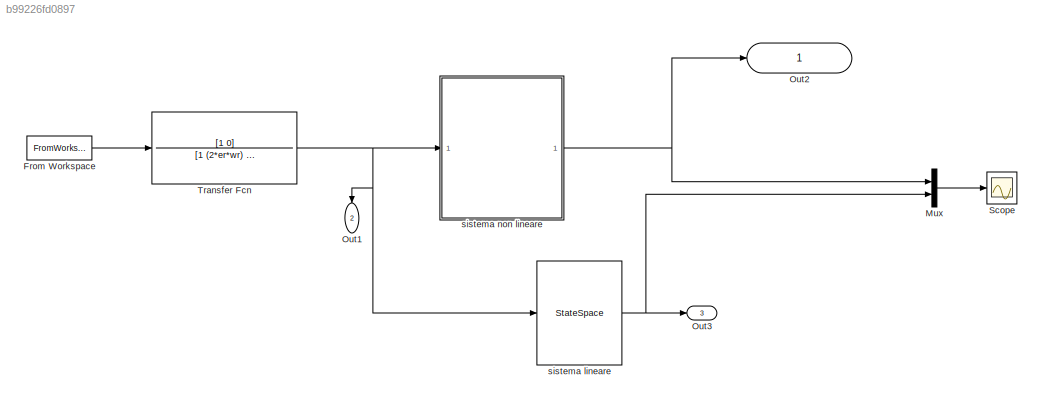
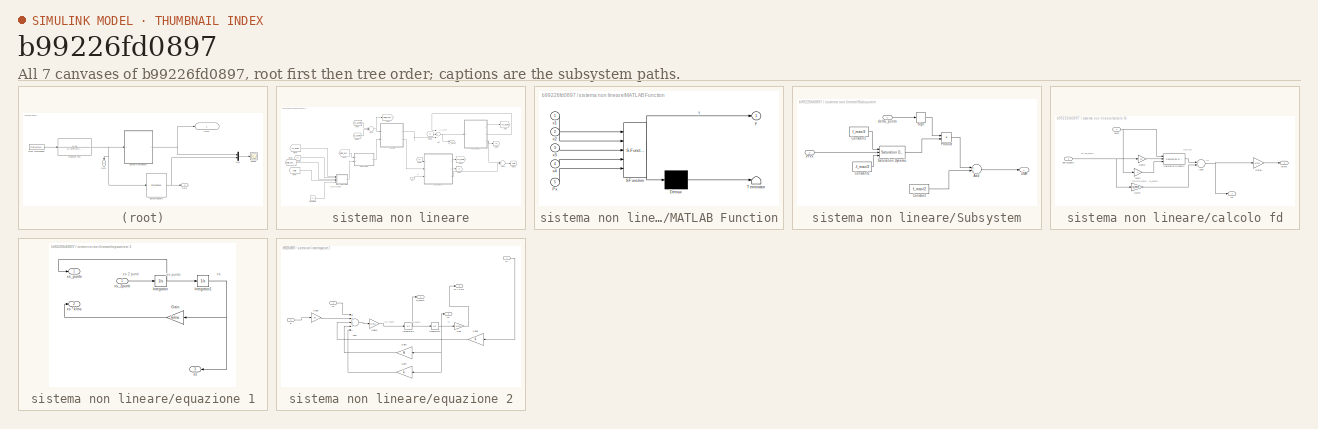
[diagram: thumbnail index - all 7 canvases of the model, root first then tree order]
MODEL slx_b99226fd0897
KIND model
CONFIG AbsTol = auto
CONFIG EnableMultiTasking = off
CONFIG FixedStep = dt
CONFIG MaxStep = auto
CONFIG MinStep = auto
CONFIG RelTol = 1e-3
CONFIG SampleTimeConstraint = Unconstrained
CONFIG Solver = FixedStepAuto
CONFIG SolverName = FixedStepAuto
CONFIG StartTime = 0.0
CONFIG StopTime = t_tot
BLOCK [FromWorkspace] From Workspace
  SampleTime = 0
  VariableName = N
  ZeroCross = on
BLOCK [Mux] Mux
  DisplayOption = bar
  Inputs = 2
  Ports = [2, 1]
BLOCK [Outport] Out1
  IconDisplay = Port number
  Port = 2
  SignalName = zr
BLOCK [Outport] Out2
  IconDisplay = Signal name
  SignalName = xs_2punti
BLOCK [Outport] Out3
  IconDisplay = Port number
  Port = 3
  SignalName = xs_2punti_lineare
BLOCK [Scope] Scope
  Floating = off
  NumInputPorts = 1
  Ports = [1]
  ScopeSpecificationString = Simulink.scopes.TimeScopeBlockCfg('CurrentConfiguration', extmgr.ConfigurationSet(extmgr.Configuration('Core','General UI',true),extmgr.Configuration('Core','Source UI',true),extmgr.Configuration('Sources','WiredSimulink',true),extmgr.Configuration('Visuals','Time Domain',true,'SerializedDisplays',{struct('MinYLimReal','-29.90981','MaxYLimReal','18.91763','YLabelReal','','MinYLimMag','0.00000','Ma...<+1440ch>
BLOCK [TransferFcn] Transfer Fcn
  Denominator = [1 (2*er*wr) wr^2]
  Numerator = [1 0]
BLOCK [StateSpace] sistema lineare
  A = A
  B = B
  C = C
  D = 0
  InitialCondition = 0
  Ports = [1, 1]
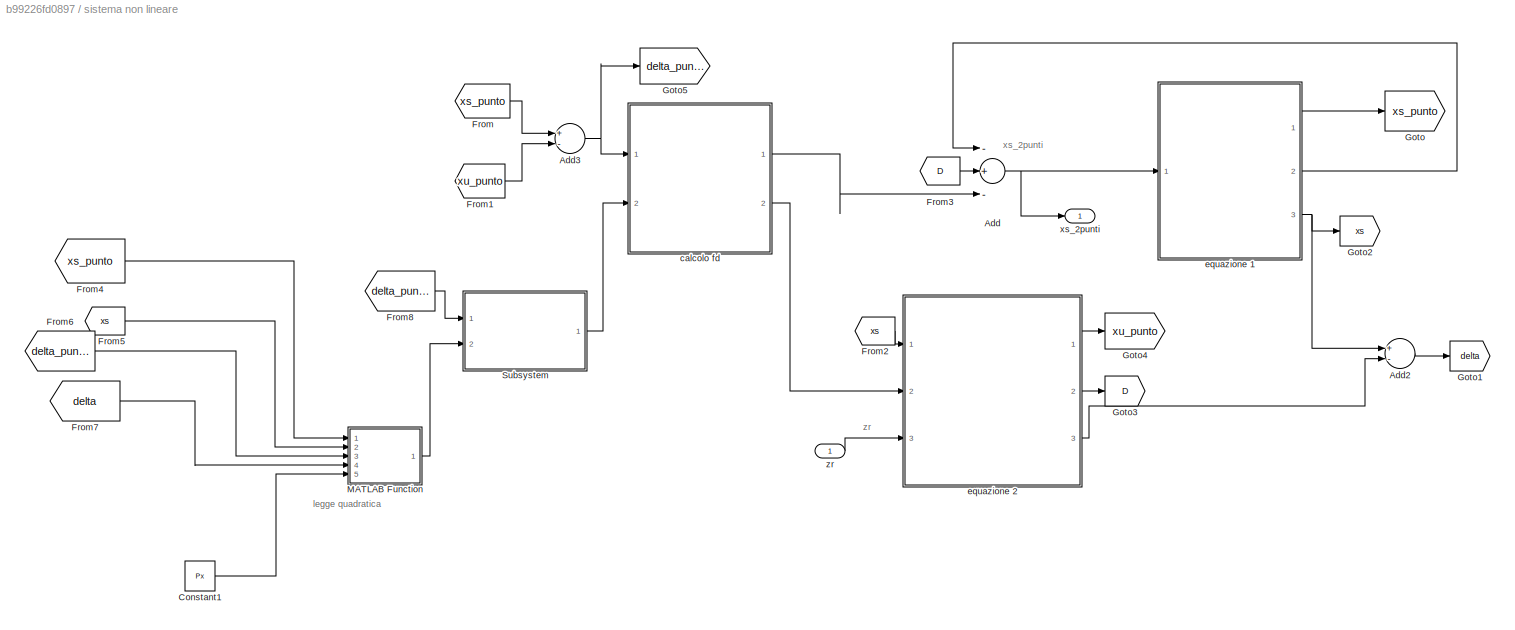
BLOCK [SubSystem] sistema non lineare
  Ports = [1, 1]
  RequestExecContextInheritance = off
BLOCK [Sum] sistema non lineare/Add
  InputSameDT = off
  Inputs = -+-
  OutDataTypeStr = Inherit: Inherit via internal rule
  Ports = [3, 1]
  SaturateOnIntegerOverflow = off
BLOCK [Sum] sistema non lineare/Add2
  InputSameDT = off
  Inputs = +-
  OutDataTypeStr = Inherit: Inherit via internal rule
  Ports = [2, 1]
  SaturateOnIntegerOverflow = off
BLOCK [Sum] sistema non lineare/Add3
  InputSameDT = off
  Inputs = +-
  OutDataTypeStr = Inherit: Inherit via internal rule
  Ports = [2, 1]
  SaturateOnIntegerOverflow = off
BLOCK [Constant] sistema non lineare/Constant1
  Value = Px
BLOCK [From] sistema non lineare/From
  GotoTag = xs_punto
BLOCK [From] sistema non lineare/From1
  GotoTag = xu_punto
BLOCK [From] sistema non lineare/From2
  GotoTag = xs
BLOCK [From] sistema non lineare/From3
  GotoTag = D
BLOCK [From] sistema non lineare/From4
  GotoTag = xs_punto
BLOCK [From] sistema non lineare/From5
  GotoTag = xs
BLOCK [From] sistema non lineare/From6
  GotoTag = delta_punto
BLOCK [From] sistema non lineare/From7
  GotoTag = delta
BLOCK [From] sistema non lineare/From8
  GotoTag = delta_punto
BLOCK [Goto] sistema non lineare/Goto
  GotoTag = xs_punto
BLOCK [Goto] sistema non lineare/Goto1
  GotoTag = delta
BLOCK [Goto] sistema non lineare/Goto2
  GotoTag = xs
BLOCK [Goto] sistema non lineare/Goto3
  GotoTag = D
BLOCK [Goto] sistema non lineare/Goto4
  GotoTag = xu_punto
BLOCK [Goto] sistema non lineare/Goto5
  GotoTag = delta_punto
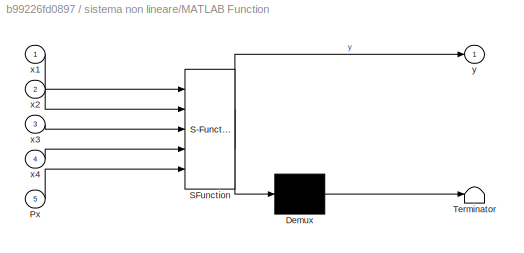
BLOCK [SubSystem] sistema non lineare/MATLAB Function
  ErrorFcn = Stateflow.Translate.translate
  PermitHierarchicalResolution = ExplicitOnly
  Ports = [5, 1]
  RequestExecContextInheritance = off
  SFBlockType = MATLAB Function
  TreatAsAtomicUnit = on
BLOCK [Demux] sistema non lineare/MATLAB Function/ Demux 
  Outputs = 1
  Ports = [1, 1]
BLOCK [S-Function] sistema non lineare/MATLAB Function/ SFunction 
  EnableBusSupport = on
  FunctionName = sf_sfun
  PortCounts = [5 2]
  Ports = [5, 2]
  SFcnIsStateOwnerBlock = off
  SFunctionDeploymentMode = off
  Tag = Stateflow S-Function 2
BLOCK [Terminator] sistema non lineare/MATLAB Function/ Terminator 
BLOCK [Inport] sistema non lineare/MATLAB Function/Px
  IconDisplay = Port number
  Port = 5
BLOCK [Inport] sistema non lineare/MATLAB Function/x1
  IconDisplay = Port number
BLOCK [Inport] sistema non lineare/MATLAB Function/x2
  IconDisplay = Port number
  Port = 2
BLOCK [Inport] sistema non lineare/MATLAB Function/x3
  IconDisplay = Port number
  Port = 3
BLOCK [Inport] sistema non lineare/MATLAB Function/x4
  IconDisplay = Port number
  Port = 4
BLOCK [Outport] sistema non lineare/MATLAB Function/y
  IconDisplay = Port number
BLOCK [SubSystem] sistema non lineare/Subsystem
  Ports = [2, 1]
  RequestExecContextInheritance = off
BLOCK [Sum] sistema non lineare/Subsystem/Add
  InputSameDT = off
  OutDataTypeStr = Inherit: Inherit via internal rule
  Ports = [2, 1]
  SaturateOnIntegerOverflow = off
BLOCK [Constant] sistema non lineare/Subsystem/Constant
  Value = f_max/2
BLOCK [Constant] sistema non lineare/Subsystem/Constant1
  Value = f_max/2
BLOCK [Constant] sistema non lineare/Subsystem/Constant2
  Value = -f_max/2
BLOCK [Product] sistema non lineare/Subsystem/Product
  InputSameDT = off
  OutDataTypeStr = Inherit: Inherit via internal rule
  Ports = [2, 1]
  RndMeth = Floor
  SaturateOnIntegerOverflow = off
BLOCK [Reference] sistema non lineare/Subsystem/Saturation Dynamic  REF=simulink/Discontinuities/Saturation
Dynamic
  Ports = [3, 1]
  SourceBlock = simulink/Discontinuities/Saturation\nDynamic
  SourceProductBaseCode = SL
  SourceProductName = Simulink
  SourceType = Saturation Dynamic
BLOCK [Signum] sistema non lineare/Subsystem/Sign
BLOCK [Inport] sistema non lineare/Subsystem/delta_punto
  IconDisplay = Port number
BLOCK [Outport] sistema non lineare/Subsystem/uMR
  IconDisplay = Port number
BLOCK [Inport] sistema non lineare/Subsystem/x*Px*x
  IconDisplay = Port number
  Port = 2
BLOCK [SubSystem] sistema non lineare/calcolo fd
  Ports = [2, 2]
  RequestExecContextInheritance = off
BLOCK [Sum] sistema non lineare/calcolo fd/Add4
  InputSameDT = off
  OutDataTypeStr = Inherit: Inherit via internal rule
  Ports = [2, 1]
  SaturateOnIntegerOverflow = off
BLOCK [Gain] sistema non lineare/calcolo fd/Gain
  Gain = -1
  OutDataTypeStr = Inherit: Inherit via internal rule
  ParamDataTypeStr = Inherit: Inherit via internal rule
  SaturateOnIntegerOverflow = off
BLOCK [Gain] sistema non lineare/calcolo fd/Gain2
  Gain = k0
  OutDataTypeStr = Inherit: Inherit via internal rule
  ParamDataTypeStr = Inherit: Inherit via internal rule
  SaturateOnIntegerOverflow = off
BLOCK [Gain] sistema non lineare/calcolo fd/Gain7
  Gain = c_min
  OutDataTypeStr = Inherit: Inherit via internal rule
  ParamDataTypeStr = Inherit: Inherit via internal rule
  SaturateOnIntegerOverflow = off
BLOCK [Gain] sistema non lineare/calcolo fd/Gain8
  Gain = 1/ms
  OutDataTypeStr = Inherit: Inherit via internal rule
  ParamDataTypeStr = Inherit: Inherit via internal rule
  SaturateOnIntegerOverflow = off
BLOCK [Reference] sistema non lineare/calcolo fd/Saturation Dynamic  REF=simulink/Discontinuities/Saturation
Dynamic
  Ports = [3, 1]
  SourceBlock = simulink/Discontinuities/Saturation\nDynamic
  SourceProductBaseCode = SL
  SourceProductName = Simulink
  SourceType = Saturation Dynamic
BLOCK [Inport] sistema non lineare/calcolo fd/delta_punto 
  IconDisplay = Port number
BLOCK [Outport] sistema non lineare/calcolo fd/fd
  IconDisplay = Port number
  Port = 2
BLOCK [Outport] sistema non lineare/calcolo fd/fd//ms
  IconDisplay = Port number
BLOCK [Inport] sistema non lineare/calcolo fd/uMR
  IconDisplay = Port number
  Port = 2
BLOCK [SubSystem] sistema non lineare/equazione 1
  Ports = [1, 3]
  RequestExecContextInheritance = off
BLOCK [Gain] sistema non lineare/equazione 1/Gain
  Gain = k/ms
  OutDataTypeStr = Inherit: Inherit via internal rule
  ParamDataTypeStr = Inherit: Inherit via internal rule
  SaturateOnIntegerOverflow = off
BLOCK [Integrator] sistema non lineare/equazione 1/Integrator
  Ports = [1, 1]
BLOCK [Integrator] sistema non lineare/equazione 1/Integrator1
  Ports = [1, 1]
BLOCK [Outport] sistema non lineare/equazione 1/xs
  IconDisplay = Port number
  Port = 3
BLOCK [Outport] sistema non lineare/equazione 1/xs * k//ms 
  IconDisplay = Port number
  Port = 2
BLOCK [Inport] sistema non lineare/equazione 1/xs_2punti
  IconDisplay = Port number
BLOCK [Outport] sistema non lineare/equazione 1/xs_punto
  IconDisplay = Port number
BLOCK [SubSystem] sistema non lineare/equazione 2
  Ports = [3, 3]
  RequestExecContextInheritance = off
BLOCK [Sum] sistema non lineare/equazione 2/Add1
  InputSameDT = off
  Inputs = +++--
  OutDataTypeStr = Inherit: Inherit via internal rule
  Ports = [5, 1]
  SaturateOnIntegerOverflow = off
BLOCK [Gain] sistema non lineare/equazione 2/Gain
  Gain = k/ms
  OutDataTypeStr = Inherit: Inherit via internal rule
  ParamDataTypeStr = Inherit: Inherit via internal rule
  SaturateOnIntegerOverflow = off
BLOCK [Gain] sistema non lineare/equazione 2/Gain10
  Gain = 1/mu
  OutDataTypeStr = Inherit: Inherit via internal rule
  ParamDataTypeStr = Inherit: Inherit via internal rule
  SaturateOnIntegerOverflow = off
BLOCK [Gain] sistema non lineare/equazione 2/Gain3
  Gain = kt
  OutDataTypeStr = Inherit: Inherit via internal rule
  ParamDataTypeStr = Inherit: Inherit via internal rule
  SaturateOnIntegerOverflow = off
BLOCK [Gain] sistema non lineare/equazione 2/Gain4
  Gain = k
  OutDataTypeStr = Inherit: Inherit via internal rule
  ParamDataTypeStr = Inherit: Inherit via internal rule
  SaturateOnIntegerOverflow = off
BLOCK [Gain] sistema non lineare/equazione 2/Gain5
  Gain = k
  OutDataTypeStr = Inherit: Inherit via internal rule
  ParamDataTypeStr = Inherit: Inherit via internal rule
  SaturateOnIntegerOverflow = off
BLOCK [Gain] sistema non lineare/equazione 2/Gain6
  Gain = kt
  OutDataTypeStr = Inherit: Inherit via internal rule
  ParamDataTypeStr = Inherit: Inherit via internal rule
  SaturateOnIntegerOverflow = off
BLOCK [Integrator] sistema non lineare/equazione 2/Integrator2
  Ports = [1, 1]
BLOCK [Integrator] sistema non lineare/equazione 2/Integrator3
  Ports = [1, 1]
BLOCK [Inport] sistema non lineare/equazione 2/fd
  IconDisplay = Port number
  Port = 2
BLOCK [Inport] sistema non lineare/equazione 2/xs
  IconDisplay = Port number
BLOCK [Outport] sistema non lineare/equazione 2/xu
  IconDisplay = Port number
  Port = 3
BLOCK [Outport] sistema non lineare/equazione 2/xu * k//ms 
  IconDisplay = Port number
  Port = 2
BLOCK [Outport] sistema non lineare/equazione 2/xu_punto
  IconDisplay = Port number
BLOCK [Inport] sistema non lineare/equazione 2/zr
  IconDisplay = Port number
  Port = 3
BLOCK [Outport] sistema non lineare/xs_2punti
  IconDisplay = Port number
BLOCK [Inport] sistema non lineare/zr
  IconDisplay = Port number
ANNOTATION sistema non lineare: xs_2punti
ANNOTATION sistema non lineare: legge quadratica
ANNOTATION sistema non lineare: zr
ANNOTATION sistema non lineare/calcolo fd: fd
ANNOTATION sistema non lineare/calcolo fd: fd_tilde
ANNOTATION sistema non lineare/calcolo fd: ztilde_punto
ANNOTATION sistema non lineare/calcolo fd: cmin(zs_punto - zu_punto)
ANNOTATION sistema non lineare/equazione 1: xs
ANNOTATION sistema non lineare/equazione 1: xs 2 punti
ANNOTATION sistema non lineare/equazione 1: xs punto
ANNOTATION sistema non lineare/equazione 2: xu
ANNOTATION sistema non lineare/equazione 2: xu 2 punti
ANNOTATION sistema non lineare/equazione 2: xu punto
LINE From Workspace:1 -> Transfer Fcn:1
LINE Mux:1 -> Scope:1
NET Transfer Fcn:1 -> Out1:1, sistema lineare:1, sistema non lineare:1
NET sistema lineare:1 -> Mux:2, Out3:1
LINE sistema non lineare/Add2:1 -> sistema non lineare/Goto1:1
NET sistema non lineare/Add3:1 -> sistema non lineare/Goto5:1, sistema non lineare/calcolo fd:1
NET sistema non lineare/Add:1 -> sistema non lineare/equazione 1:1, sistema non lineare/xs_2punti:1
LINE sistema non lineare/Constant1:1 -> sistema non lineare/MATLAB Function:5
LINE sistema non lineare/From1:1 -> sistema non lineare/Add3:2
LINE sistema non lineare/From2:1 -> sistema non lineare/equazione 2:1
LINE sistema non lineare/From3:1 -> sistema non lineare/Add:2
LINE sistema non lineare/From4:1 -> sistema non lineare/MATLAB Function:1
LINE sistema non lineare/From5:1 -> sistema non lineare/MATLAB Function:2
LINE sistema non lineare/From6:1 -> sistema non lineare/MATLAB Function:3
LINE sistema non lineare/From7:1 -> sistema non lineare/MATLAB Function:4
LINE sistema non lineare/From8:1 -> sistema non lineare/Subsystem:1
LINE sistema non lineare/From:1 -> sistema non lineare/Add3:1
LINE sistema non lineare/MATLAB Function:1 -> sistema non lineare/Subsystem:2
LINE sistema non lineare/Subsystem/Add:1 -> sistema non lineare/Subsystem/uMR:1
LINE sistema non lineare/Subsystem/Constant1:1 -> sistema non lineare/Subsystem/Saturation Dynamic:1
LINE sistema non lineare/Subsystem/Constant2:1 -> sistema non lineare/Subsystem/Saturation Dynamic:3
LINE sistema non lineare/Subsystem/Constant:1 -> sistema non lineare/Subsystem/Add:2
LINE sistema non lineare/Subsystem/Product:1 -> sistema non lineare/Subsystem/Add:1
LINE sistema non lineare/Subsystem/Saturation Dynamic:1 -> sistema non lineare/Subsystem/Product:2
LINE sistema non lineare/Subsystem/Sign:1 -> sistema non lineare/Subsystem/Product:1
LINE sistema non lineare/Subsystem/delta_punto:1 -> sistema non lineare/Subsystem/Sign:1
LINE sistema non lineare/Subsystem/x*Px*x:1 -> sistema non lineare/Subsystem/Saturation Dynamic:2
LINE sistema non lineare/Subsystem:1 -> sistema non lineare/calcolo fd:2
NET sistema non lineare/calcolo fd/Add4:1 -> sistema non lineare/calcolo fd/Gain8:1, sistema non lineare/calcolo fd/fd:1
LINE sistema non lineare/calcolo fd/Gain2:1 -> sistema non lineare/calcolo fd/Saturation Dynamic:2
LINE sistema non lineare/calcolo fd/Gain7:1 -> sistema non lineare/calcolo fd/Add4:2
LINE sistema non lineare/calcolo fd/Gain8:1 -> sistema non lineare/calcolo fd/fd//ms:1
LINE sistema non lineare/calcolo fd/Gain:1 -> sistema non lineare/calcolo fd/Saturation Dynamic:3
LINE sistema non lineare/calcolo fd/Saturation Dynamic:1 -> sistema non lineare/calcolo fd/Add4:1
NET sistema non lineare/calcolo fd/delta_punto :1 -> sistema non lineare/calcolo fd/Gain2:1, sistema non lineare/calcolo fd/Gain7:1
NET sistema non lineare/calcolo fd/uMR:1 -> sistema non lineare/calcolo fd/Gain:1, sistema non lineare/calcolo fd/Saturation Dynamic:1
LINE sistema non lineare/calcolo fd:1 -> sistema non lineare/Add:3
LINE sistema non lineare/calcolo fd:2 -> sistema non lineare/equazione 2:2
LINE sistema non lineare/equazione 1/Gain:1 -> sistema non lineare/equazione 1/xs * k//ms :1
NET sistema non lineare/equazione 1/Integrator1:1 -> sistema non lineare/equazione 1/Gain:1, sistema non lineare/equazione 1/xs:1
NET sistema non lineare/equazione 1/Integrator:1 -> sistema non lineare/equazione 1/Integrator1:1, sistema non lineare/equazione 1/xs_punto:1
LINE sistema non lineare/equazione 1/xs_2punti:1 -> sistema non lineare/equazione 1/Integrator:1
LINE sistema non lineare/equazione 1:1 -> sistema non lineare/Goto:1
LINE sistema non lineare/equazione 1:2 -> sistema non lineare/Add:1
NET sistema non lineare/equazione 1:3 -> sistema non lineare/Add2:1, sistema non lineare/Goto2:1
LINE sistema non lineare/equazione 2/Add1:1 -> sistema non lineare/equazione 2/Gain10:1
LINE sistema non lineare/equazione 2/Gain10:1 -> sistema non lineare/equazione 2/Integrator2:1
LINE sistema non lineare/equazione 2/Gain3:1 -> sistema non lineare/equazione 2/Add1:4
LINE sistema non lineare/equazione 2/Gain4:1 -> sistema non lineare/equazione 2/Add1:5
LINE sistema non lineare/equazione 2/Gain5:1 -> sistema non lineare/equazione 2/Add1:3
LINE sistema non lineare/equazione 2/Gain6:1 -> sistema non lineare/equazione 2/Add1:2
LINE sistema non lineare/equazione 2/Gain:1 -> sistema non lineare/equazione 2/xu * k//ms :1
NET sistema non lineare/equazione 2/Integrator2:1 -> sistema non lineare/equazione 2/Integrator3:1, sistema non lineare/equazione 2/xu_punto:1
NET sistema non lineare/equazione 2/Integrator3:1 -> sistema non lineare/equazione 2/Gain3:1, sistema non lineare/equazione 2/Gain4:1, sistema non lineare/equazione 2/Gain:1, sistema non lineare/equazione 2/xu:1
LINE sistema non lineare/equazione 2/fd:1 -> sistema non lineare/equazione 2/Add1:1
LINE sistema non lineare/equazione 2/xs:1 -> sistema non lineare/equazione 2/Gain5:1
LINE sistema non lineare/equazione 2/zr:1 -> sistema non lineare/equazione 2/Gain6:1
LINE sistema non lineare/equazione 2:1 -> sistema non lineare/Goto4:1
LINE sistema non lineare/equazione 2:2 -> sistema non lineare/Goto3:1
LINE sistema non lineare/equazione 2:3 -> sistema non lineare/Add2:2
LINE sistema non lineare/zr:1 -> sistema non lineare/equazione 2:3
NET sistema non lineare:1 -> Mux:1, Out2:1
note: NET lines group one-source signal fan-out (src -> all destinations, sorted); 1:1 wires keep LINE
CHART sistema non lineare/MATLAB Function states=1 transitions=1
  STATE_LABEL 'eML_blk_kernel()'
  STATE_LABEL "SCRIPT:\nfunction y = fcn(x1,x2,x3,x4,Px)\nx = [x1;\n     x2;\n     x3;\n     x4];\n \ny = x.'*Px*x; \n"
